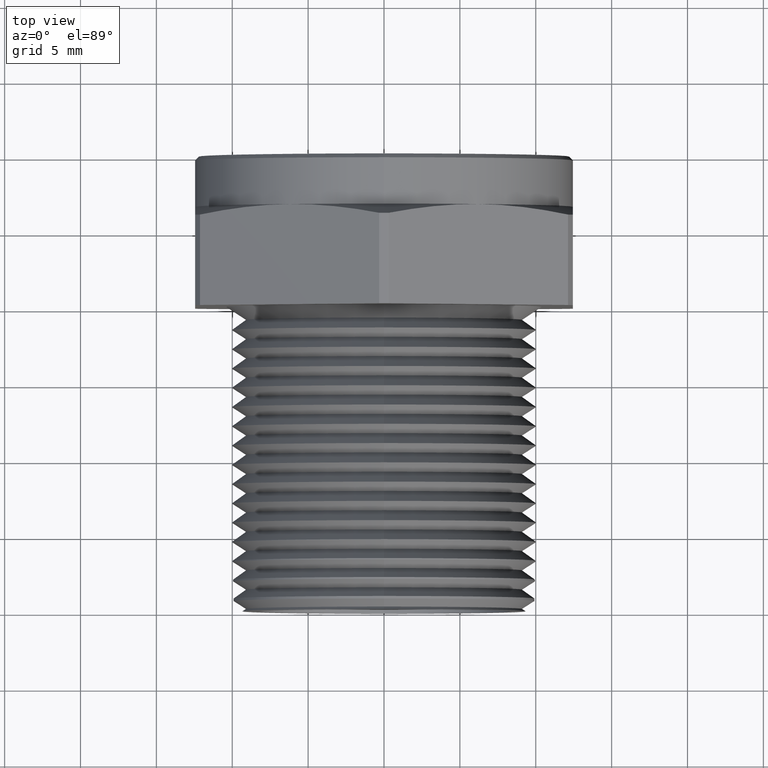
[diagram: clean part render]
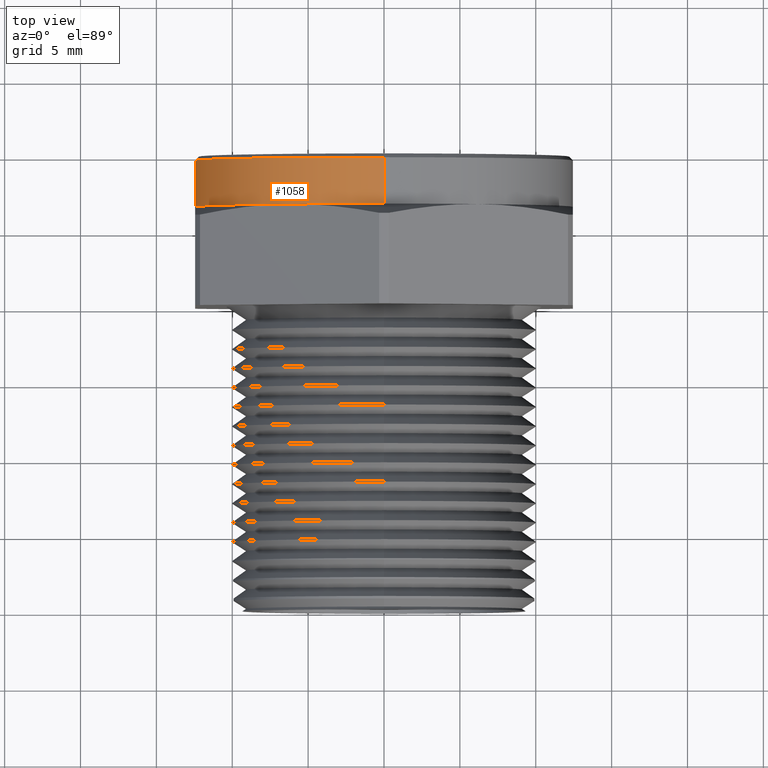
[diagram: same view with one face highlighted and labeled with its STEP entity id]
A machine part, top view. The second image highlights one B-rep face of the part: STEP entity #1058.
In plain terms, the highlighted cylindrical surface (partial cylindrical patch) has radius 12.446 mm, axis along (-0, -1, -0).
Its self-contained STEP definition (entity closure, byte-faithful):
#346 = DIRECTION ( 'NONE',  ( -0.0000000000000000000, -1.000000000000000000, -0.0000000000000000000 ) ) ;
#347 = VECTOR ( 'NONE', #346, 39.37007874015748100 ) ;
#348 = CARTESIAN_POINT ( 'NONE',  ( 6.000769315822029800E-017, 0.0000000000000000000, 0.4899999999999999900 ) ) ;
#349 = LINE ( 'NONE', #348, #347 ) ;
#964 = VERTEX_POINT ( 'NONE', #2204 ) ;
#968 = VERTEX_POINT ( 'NONE', #2248 ) ;
#1033 = VERTEX_POINT ( 'NONE', #2341 ) ;
#1040 = ORIENTED_EDGE ( 'NONE', *, *, #1041, .F. ) ;
#1041 = EDGE_CURVE ( 'NONE', #1033, #964, #2385, .T. ) ;
#1042 = ORIENTED_EDGE ( 'NONE', *, *, #1043, .F. ) ;
#1043 = EDGE_CURVE ( 'NONE', #968, #1033, #2376, .T. ) ;
#1044 = ORIENTED_EDGE ( 'NONE', *, *, #1045, .F. ) ;
#1045 = EDGE_CURVE ( 'NONE', #1483, #968, #2370, .T. ) ;
#1058 = ADVANCED_FACE ( 'NONE', ( #2413 ), #2412, .T. ) ;
#1059 = EDGE_LOOP ( 'NONE', ( #1060, #1061, #1063, #1064, #1040, #1042, #1044 ) ) ;
#1060 = ORIENTED_EDGE ( 'NONE', *, *, #1817, .F. ) ;
#1061 = ORIENTED_EDGE ( 'NONE', *, *, #1062, .T. ) ;
#1062 = EDGE_CURVE ( 'NONE', #1545, #1493, #2411, .T. ) ;
#1063 = ORIENTED_EDGE ( 'NONE', *, *, #1309, .T. ) ;
#1064 = ORIENTED_EDGE ( 'NONE', *, *, #1065, .F. ) ;
#1065 = EDGE_CURVE ( 'NONE', #964, #1307, #2402, .T. ) ;
#1307 = VERTEX_POINT ( 'NONE', #2741 ) ;
#1309 = EDGE_CURVE ( 'NONE', #1493, #1307, #2740, .T. ) ;
#1483 = VERTEX_POINT ( 'NONE', #3026 ) ;
#1493 = VERTEX_POINT ( 'NONE', #3069 ) ;
#1545 = VERTEX_POINT ( 'NONE', #3155 ) ;
#1817 = EDGE_CURVE ( 'NONE', #1545, #1483, #349, .T. ) ;
#2204 = CARTESIAN_POINT ( 'NONE',  ( -0.2450000000000000000, 1.049600000000000100, -0.4243524478543748700 ) ) ;
#2248 = CARTESIAN_POINT ( 'NONE',  ( -0.2449999999999999400, 1.049600000000000100, 0.4243524478543749800 ) ) ;
#2341 = CARTESIAN_POINT ( 'NONE',  ( -0.4899999999999999900, 1.049600000000000100, 0.0000000000000000000 ) ) ;
#2366 = DIRECTION ( 'NONE',  ( 0.0000000000000000000, 0.0000000000000000000, -1.000000000000000000 ) ) ;
#2367 = DIRECTION ( 'NONE',  ( -0.0000000000000000000, -1.000000000000000000, -0.0000000000000000000 ) ) ;
#2368 = CARTESIAN_POINT ( 'NONE',  ( 0.0000000000000000000, 1.049600000000000100, 0.0000000000000000000 ) ) ;
#2369 = AXIS2_PLACEMENT_3D ( 'NONE', #2368, #2367, #2366 ) ;
#2370 = CIRCLE ( 'NONE', #2369, 0.4899999999999999900 ) ;
#2372 = DIRECTION ( 'NONE',  ( 0.0000000000000000000, 0.0000000000000000000, -1.000000000000000000 ) ) ;
#2373 = DIRECTION ( 'NONE',  ( -0.0000000000000000000, -1.000000000000000000, -0.0000000000000000000 ) ) ;
#2374 = CARTESIAN_POINT ( 'NONE',  ( 0.0000000000000000000, 1.049600000000000100, 0.0000000000000000000 ) ) ;
#2375 = AXIS2_PLACEMENT_3D ( 'NONE', #2374, #2373, #2372 ) ;
#2376 = CIRCLE ( 'NONE', #2375, 0.4899999999999999900 ) ;
#2377 = DIRECTION ( 'NONE',  ( 0.0000000000000000000, 0.0000000000000000000, -1.000000000000000000 ) ) ;
#2378 = DIRECTION ( 'NONE',  ( -0.0000000000000000000, -1.000000000000000000, -0.0000000000000000000 ) ) ;
#2379 = CARTESIAN_POINT ( 'NONE',  ( 0.0000000000000000000, 1.049600000000000100, 0.0000000000000000000 ) ) ;
#2380 = AXIS2_PLACEMENT_3D ( 'NONE', #2379, #2378, #2377 ) ;
#2385 = CIRCLE ( 'NONE', #2380, 0.4899999999999999900 ) ;
#2399 = DIRECTION ( 'NONE',  ( -0.0000000000000000000, -1.000000000000000000, -0.0000000000000000000 ) ) ;
#2400 = CARTESIAN_POINT ( 'NONE',  ( 0.0000000000000000000, 1.049600000000000100, 0.0000000000000000000 ) ) ;
#2401 = AXIS2_PLACEMENT_3D ( 'NONE', #2400, #2399, #2462 ) ;
#2402 = CIRCLE ( 'NONE', #2401, 0.4899999999999999900 ) ;
#2403 = DIRECTION ( 'NONE',  ( 0.0000000000000000000, 0.0000000000000000000, 1.000000000000000000 ) ) ;
#2404 = DIRECTION ( 'NONE',  ( -0.0000000000000000000, -1.000000000000000000, -0.0000000000000000000 ) ) ;
#2405 = CARTESIAN_POINT ( 'NONE',  ( 0.0000000000000000000, 1.170000000000000200, 0.0000000000000000000 ) ) ;
#2406 = AXIS2_PLACEMENT_3D ( 'NONE', #2405, #2404, #2403 ) ;
#2407 = DIRECTION ( 'NONE',  ( 0.0000000000000000000, 0.0000000000000000000, -1.000000000000000000 ) ) ;
#2408 = DIRECTION ( 'NONE',  ( -0.0000000000000000000, -1.000000000000000000, -0.0000000000000000000 ) ) ;
#2409 = CARTESIAN_POINT ( 'NONE',  ( 0.0000000000000000000, 0.0000000000000000000, 0.0000000000000000000 ) ) ;
#2410 = AXIS2_PLACEMENT_3D ( 'NONE', #2409, #2408, #2407 ) ;
#2411 = CIRCLE ( 'NONE', #2406, 0.4899999999999999900 ) ;
#2412 = CYLINDRICAL_SURFACE ( 'NONE', #2410, 0.4899999999999999900 ) ;
#2413 = FACE_OUTER_BOUND ( 'NONE', #1059, .T. ) ;
#2462 = DIRECTION ( 'NONE',  ( 0.0000000000000000000, 0.0000000000000000000, -1.000000000000000000 ) ) ;
#2737 = DIRECTION ( 'NONE',  ( -0.0000000000000000000, -1.000000000000000000, -0.0000000000000000000 ) ) ;
#2738 = VECTOR ( 'NONE', #2737, 39.37007874015748100 ) ;
#2739 = CARTESIAN_POINT ( 'NONE',  ( 0.0000000000000000000, 0.0000000000000000000, -0.4899999999999999900 ) ) ;
#2740 = LINE ( 'NONE', #2739, #2738 ) ;
#2741 = CARTESIAN_POINT ( 'NONE',  ( 0.0000000000000000000, 1.049600000000000100, -0.4899999999999999900 ) ) ;
#3026 = CARTESIAN_POINT ( 'NONE',  ( 6.000769315822029800E-017, 1.049600000000000100, 0.4899999999999999900 ) ) ;
#3069 = CARTESIAN_POINT ( 'NONE',  ( 0.0000000000000000000, 1.170000000000000200, -0.4899999999999999900 ) ) ;
#3155 = CARTESIAN_POINT ( 'NONE',  ( 6.000769315822029800E-017, 1.170000000000000200, 0.4899999999999999900 ) ) ;